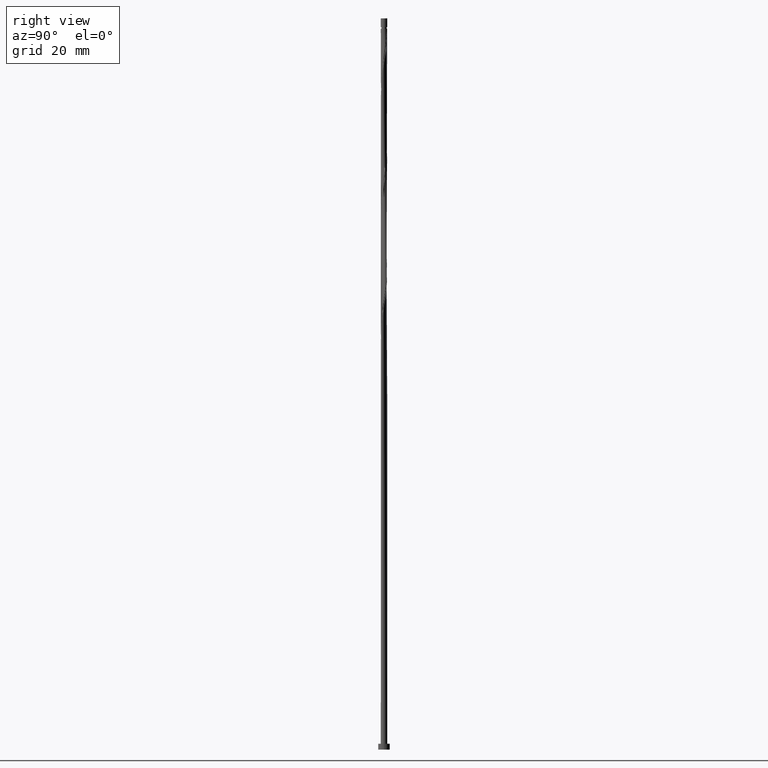
[diagram: clean part render]
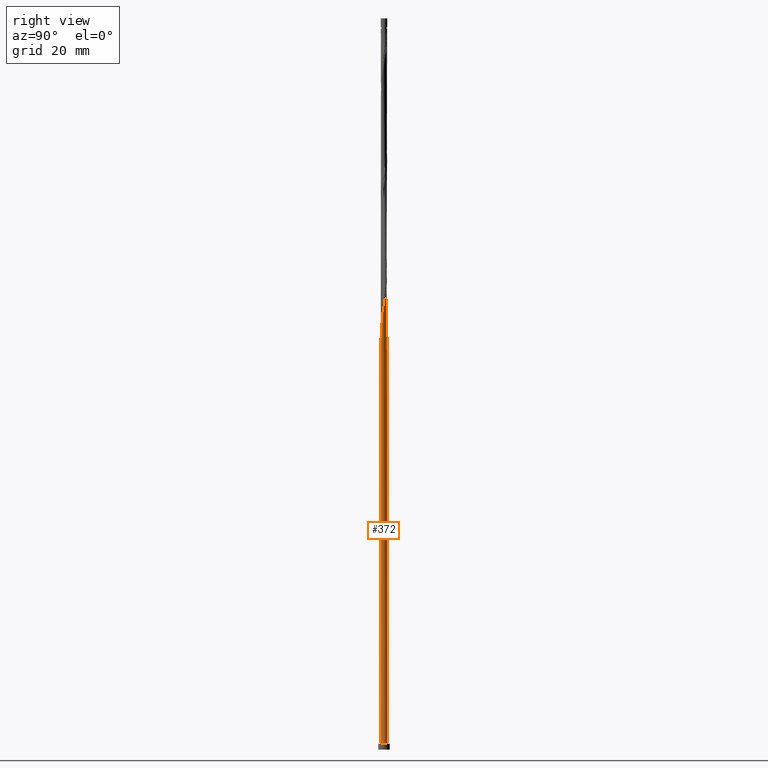
[diagram: same view with one face highlighted and labeled with its STEP entity id]
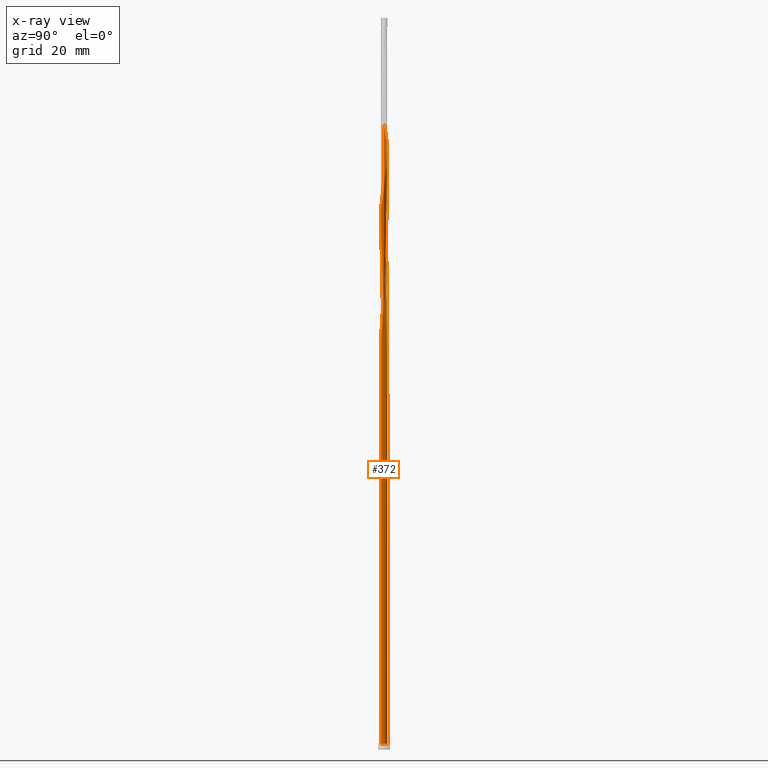
[diagram: x-ray of the same camera — body ghosted, the highlighted face saturated]
A machine part, right view. The second image highlights one B-rep face of the part: STEP entity #372.
The next image is the same camera in x-ray: the body ghosted, the highlighted face saturated — about 0% of this face is hidden behind the body in this view.
In plain terms, the highlighted cylindrical surface (bore or boss wall) has radius 1.1 mm, axis along (-0, -0, -1).
Its self-contained STEP definition (entity closure, byte-faithful):
#14 = CARTESIAN_POINT ( 'NONE',  ( -1.085917561661207564, 0.2205049656298698479, 131.9247440924688135 ) ) ;
#20 = ORIENTED_EDGE ( 'NONE', *, *, #575, .T. ) ;
#24 = VERTEX_POINT ( 'NONE', #306 ) ;
#35 = CARTESIAN_POINT ( 'NONE',  ( -1.096525312441912536, 0.08736268753976401957, 132.7260261437508859 ) ) ;
#56 = CARTESIAN_POINT ( 'NONE',  ( 1.085917561661207342, 0.2205049656298695704, 152.7580774258021563 ) ) ;
#64 = CARTESIAN_POINT ( 'NONE',  ( 0.04544580579190091868, 1.099060816668453677, 161.5721799899047539 ) ) ;
#65 = EDGE_CURVE ( 'NONE', #1525, #24, #1457, .T. ) ;
#71 = CARTESIAN_POINT ( 'NONE',  ( -1.011524410454707423, 0.4322249033249475070, 169.5850005027252223 ) ) ;
#75 = EDGE_LOOP ( 'NONE', ( #822, #698, #441, #195, #1601, #1332, #1346, #20, #578 ) ) ;
#79 = CARTESIAN_POINT ( 'NONE',  ( 1.085569539318544718, -0.1775915969400758132, 150.3542312719560812 ) ) ;
#80 = AXIS2_PLACEMENT_3D ( 'NONE', #376, #1046, #1710 ) ;
#86 = DIRECTION ( 'NONE',  ( -0.000000000000000000, -0.000000000000000000, -1.000000000000000000 ) ) ;
#88 = CARTESIAN_POINT ( 'NONE',  ( -0.5509992915702822680, -0.9520503036547229847, 137.5337184514431783 ) ) ;
#96 = CARTESIAN_POINT ( 'NONE',  ( 0.4353994555731702243, 1.018953730391247703, 200.8350005027252507 ) ) ;
#103 = CARTESIAN_POINT ( 'NONE',  ( -0.4705187664120752400, 0.9942897417021170359, 206.4439748616996440 ) ) ;
#113 = CARTESIAN_POINT ( 'NONE',  ( 1.096525312441912536, 0.08736268753976325629, 193.6234620411867979 ) ) ;
#118 = CARTESIAN_POINT ( 'NONE',  ( -0.9590428054949425851, 0.5550462033200861400, 210.4503851181099208 ) ) ;
#123 = CARTESIAN_POINT ( 'NONE',  ( -1.001592478565782374, 0.4739745747106117735, 130.3221799899047539 ) ) ;
#127 = CARTESIAN_POINT ( 'NONE',  ( -1.100000000000001865, 0.08938208239074957318, 130.0571214792286412 ) ) ;
#147 = CARTESIAN_POINT ( 'NONE',  ( -0.7628288044120180578, 0.7925226906274263072, 127.9183338360585793 ) ) ;
#158 = CARTESIAN_POINT ( 'NONE',  ( -0.8590584812566420814, -0.6998985043366532377, 135.1298722975971032 ) ) ;
#195 = ORIENTED_EDGE ( 'NONE', *, *, #1086, .T. ) ;
#203 = CARTESIAN_POINT ( 'NONE',  ( -0.5509992915702822680, -0.9520503036547229847, 179.2003851181098923 ) ) ;
#206 = DIRECTION ( 'NONE',  ( -0.000000000000000000, -0.000000000000000000, -1.000000000000000000 ) ) ;
#212 = CARTESIAN_POINT ( 'NONE',  ( 0.3071477027034161811, 1.056248213595657237, 159.9696158873406659 ) ) ;
#220 = CARTESIAN_POINT ( 'NONE',  ( 0.8786931595968742181, -0.6617388694021730799, 147.1491030668278484 ) ) ;
#228 = CARTESIAN_POINT ( 'NONE',  ( 0.6947954562229506914, -0.8527949777126653252, 187.2132056309303607 ) ) ;
#236 = CARTESIAN_POINT ( 'NONE',  ( -1.043755020113495080, -0.3472397701702404360, 174.3926928104175431 ) ) ;
#259 = CARTESIAN_POINT ( 'NONE',  ( 1.064006015414472373, -0.3094036033298096511, 191.2196158873406091 ) ) ;
#267 = CARTESIAN_POINT ( 'NONE',  ( -0.6947954562229506914, 0.8527949777126653252, 124.7132056309304033 ) ) ;
#278 = CARTESIAN_POINT ( 'NONE',  ( 1.001592478565782596, 0.4739745747106113849, 196.0273081950330152 ) ) ;
#294 = CARTESIAN_POINT ( 'NONE',  ( -0.9303254799112121720, -0.5869365395236321170, 134.3285902463150023 ) ) ;
#306 = CARTESIAN_POINT ( 'NONE',  ( 0.2188972361634583808, 1.078000000000001624, 121.5080774258021563 ) ) ;
#316 = CARTESIAN_POINT ( 'NONE',  ( -1.100000000000001865, 1.424553145295472458E-15, 130.5968222165769816 ) ) ;
#326 = CARTESIAN_POINT ( 'NONE',  ( -0.6665991275673944783, -0.8851468769181991547, 178.3991030668278484 ) ) ;
#329 = FACE_OUTER_BOUND ( 'NONE', #75, .T. ) ;
#334 = CARTESIAN_POINT ( 'NONE',  ( -0.7628288044120182798, -0.7925226906274261962, 177.5978210155458328 ) ) ;
#343 = CARTESIAN_POINT ( 'NONE',  ( -1.064006015414472595, 0.3094036033298089294, 170.3862825540073231 ) ) ;
#352 = CARTESIAN_POINT ( 'NONE',  ( -0.5912473987470955317, 0.9371584199410716298, 165.5785902463150308 ) ) ;
#359 = CARTESIAN_POINT ( 'NONE',  ( -0.9590428054949425851, 0.5550462033200861400, 168.7837184514432352 ) ) ;
#366 = CARTESIAN_POINT ( 'NONE',  ( -1.064006015414472595, 0.3094036033298089294, 128.7196158873406375 ) ) ;
#372 = ADVANCED_FACE ( 'NONE', ( #329 ), #863, .T. ) ;
#376 = CARTESIAN_POINT ( 'NONE',  ( 0.000000000000000000, 0.000000000000000000, 2.000000000000000000 ) ) ;
#383 = CARTESIAN_POINT ( 'NONE',  ( -0.6947954562229506914, 0.8527949777126653252, 208.0465389642637319 ) ) ;
#392 = CARTESIAN_POINT ( 'NONE',  ( -0.8786931595968742181, 0.6617388694021728579, 126.3157697334944771 ) ) ;
#413 = DIRECTION ( 'NONE',  ( 0.000000000000000000, 1.000000000000000000, -3.784851220313033316E-14 ) ) ;
#417 = CARTESIAN_POINT ( 'NONE',  ( -1.085917561661207342, -0.2205049656298697092, 131.9247440924688419 ) ) ;
#421 = VERTEX_POINT ( 'NONE', #1668 ) ;
#423 = CARTESIAN_POINT ( 'NONE',  ( -0.3071477027034154594, 1.056248213595657903, 124.7132056309303749 ) ) ;
#426 = CARTESIAN_POINT ( 'NONE',  ( 0.000000000000000000, 0.000000000000000000, 2.000000000000000000 ) ) ;
#429 = VERTEX_POINT ( 'NONE', #727 ) ;
#441 = ORIENTED_EDGE ( 'NONE', *, *, #1395, .T. ) ;
#453 = CARTESIAN_POINT ( 'NONE',  ( -0.3071477027034157370, -1.056248213595657459, 139.1362825540072947 ) ) ;
#461 = CARTESIAN_POINT ( 'NONE',  ( -0.04544580579190031500, -1.099060816668453677, 140.7388466565714111 ) ) ;
#470 = CARTESIAN_POINT ( 'NONE',  ( 1.096525312441912536, 0.08736268753976325629, 151.9567953745201407 ) ) ;
#481 = CARTESIAN_POINT ( 'NONE',  ( 0.4705187664120750179, -0.9942897417021172579, 185.6106415283663011 ) ) ;
#486 = EDGE_CURVE ( 'NONE', #421, #1525, #540, .T. ) ;
#488 = CARTESIAN_POINT ( 'NONE',  ( 0.7628288044120183908, 0.7925226906274260852, 156.7644876822124616 ) ) ;
#495 = CARTESIAN_POINT ( 'NONE',  ( -0.5912473987470955317, 0.9371584199410716298, 207.2452569129816879 ) ) ;
#502 = CARTESIAN_POINT ( 'NONE',  ( 0.3071477027034161811, 1.056248213595657237, 201.6362825540073231 ) ) ;
#509 = CARTESIAN_POINT ( 'NONE',  ( 1.085917561661207342, 0.2205049656298695704, 194.4247440924688135 ) ) ;
#516 = CARTESIAN_POINT ( 'NONE',  ( -0.5912473987470955317, 0.9371584199410716298, 123.9119235796483167 ) ) ;
#526 = CARTESIAN_POINT ( 'NONE',  ( 0.8590584812566425255, 0.6998985043366526826, 197.6298722975971032 ) ) ;
#528 = VERTEX_POINT ( 'NONE', #1354 ) ;
#540 = LINE ( 'NONE', #551, #1692 ) ;
#542 = CARTESIAN_POINT ( 'NONE',  ( -0.5509992915702819349, 0.9520503036547237619, 126.3157697334944771 ) ) ;
#551 = CARTESIAN_POINT ( 'NONE',  ( -1.100000000000000089, 0.000000000000000000, 250.0000000000000000 ) ) ;
#553 = CARTESIAN_POINT ( 'NONE',  ( -1.100000000000001865, 0.04375044337044819293, 132.9884950527277567 ) ) ;
#564 = CARTESIAN_POINT ( 'NONE',  ( -0.8590584812566418593, 0.6998985043366532377, 128.7196158873406659 ) ) ;
#575 = EDGE_CURVE ( 'NONE', #429, #24, #636, .T. ) ;
#578 = ORIENTED_EDGE ( 'NONE', *, *, #65, .F. ) ;
#591 = CARTESIAN_POINT ( 'NONE',  ( 0.5509992915702824900, 0.9520503036547229847, 158.3670517847765211 ) ) ;
#599 = CARTESIAN_POINT ( 'NONE',  ( -1.107133063222617286, 0.04577959055034207941, 171.9888466565714111 ) ) ;
#603 = CARTESIAN_POINT ( 'NONE',  ( -1.100000000000002087, -1.200214067296184068E-15, 133.2526659683607306 ) ) ;
#606 = CARTESIAN_POINT ( 'NONE',  ( -1.085569539318544718, 0.1775915969400757022, 171.1875646052893387 ) ) ;
#608 = VERTEX_POINT ( 'NONE', #1615 ) ;
#617 = CARTESIAN_POINT ( 'NONE',  ( 0.9590428054949423631, -0.5550462033200865841, 147.9503851181098639 ) ) ;
#623 = CARTESIAN_POINT ( 'NONE',  ( 0.7983435136988061842, -0.7684315354842599088, 146.3478210155457475 ) ) ;
#630 = CARTESIAN_POINT ( 'NONE',  ( 1.085569539318544718, -0.1775915969400758132, 192.0208979386226815 ) ) ;
#636 = CIRCLE ( 'NONE', #797, 1.100000000000000089 ) ;
#639 = CARTESIAN_POINT ( 'NONE',  ( -1.100000000000002531, 0.08938208239074595107, 213.3904548125620124 ) ) ;
#646 = CARTESIAN_POINT ( 'NONE',  ( -1.085569539318544718, 0.1775915969400757022, 212.8542312719560528 ) ) ;
#657 = CARTESIAN_POINT ( 'NONE',  ( -0.04544580579189993336, 1.099060816668453899, 123.1106415283662727 ) ) ;
#662 = CARTESIAN_POINT ( 'NONE',  ( 0.8786931595968742181, -0.6617388694021730799, 188.8157697334945055 ) ) ;
#696 =( BOUNDED_CURVE ( )  B_SPLINE_CURVE ( 2, ( #1164, #903, #1557, #516, #267, #1581, #392, #788, #772, #366, #1310, #127, #897 ),
 .UNSPECIFIED., .F., .T. ) 
 B_SPLINE_CURVE_WITH_KNOTS ( ( 3, 2, 2, 2, 2, 2, 3 ),
 ( 0.000000000000000000, 0.009615384615384581224, 0.01923076923076927347, 0.02884615384615385469, 0.03846153846153843592, 0.04807692307692312816, 0.05452716259738328575 ),
 .UNSPECIFIED. ) 
 CURVE ( )  GEOMETRIC_REPRESENTATION_ITEM ( )  RATIONAL_B_SPLINE_CURVE ( ( 0.9090909090909822243, 0.9024626128164853212, 0.9090909090909822243, 0.9024626128164853212, 0.9090909090909822243, 0.9024626128164853212, 0.9090909090909822243, 0.9024626128164853212, 0.9090909090909822243, 0.9024626128164853212, 0.9090909090909822243, 0.9046444828383419789, 0.9061636035683369172 ) ) 
 REPRESENTATION_ITEM ( '' )  );
#698 = ORIENTED_EDGE ( 'NONE', *, *, #1031, .F. ) ;
#724 = CARTESIAN_POINT ( 'NONE',  ( -0.4353994555731702243, -1.018953730391247703, 180.0016671693919648 ) ) ;
#727 = CARTESIAN_POINT ( 'NONE',  ( -0.2188972361634577701, 1.078000000000001180, 121.5080774258021563 ) ) ;
#733 = CARTESIAN_POINT ( 'NONE',  ( -0.1788959498336612219, -1.093542696800067882, 181.6042312719560812 ) ) ;
#741 = CARTESIAN_POINT ( 'NONE',  ( 0.3497901340770548373, -1.051421063463162664, 143.1426928104175431 ) ) ;
#750 = CARTESIAN_POINT ( 'NONE',  ( 1.107133063222617286, -0.04577959055034197533, 151.1555133232380683 ) ) ;
#758 = CARTESIAN_POINT ( 'NONE',  ( 1.043755020113495080, 0.3472397701702399919, 153.5593594770842572 ) ) ;
#766 = CARTESIAN_POINT ( 'NONE',  ( 0.9303254799112121720, 0.5869365395236321170, 196.8285902463150308 ) ) ;
#772 = CARTESIAN_POINT ( 'NONE',  ( -1.011524410454707423, 0.4322249033249475070, 127.9183338360585793 ) ) ;
#779 = CARTESIAN_POINT ( 'NONE',  ( 0.7983435136988061842, -0.7684315354842599088, 188.0144876822124616 ) ) ;
#788 = CARTESIAN_POINT ( 'NONE',  ( -0.9590428054949425851, 0.5550462033200861400, 127.1170517847765637 ) ) ;
#793 = CARTESIAN_POINT ( 'NONE',  ( -0.9303254799112121720, 0.5869365395236327831, 129.5208979386226531 ) ) ;
#797 = AXIS2_PLACEMENT_3D ( 'NONE', #1174, #925, #413 ) ;
#809 = CARTESIAN_POINT ( 'NONE',  ( -1.100000000000001865, -0.04375044337044581289, 130.8609931322099271 ) ) ;
#815 = DIRECTION ( 'NONE',  ( -0.000000000000000000, -0.000000000000000000, -1.000000000000000000 ) ) ;
#818 = DIRECTION ( 'NONE',  ( 1.000000000000000000, 0.000000000000000000, 0.000000000000000000 ) ) ;
#822 = ORIENTED_EDGE ( 'NONE', *, *, #486, .F. ) ;
#833 = CIRCLE ( 'NONE', #80, 1.100000000000000089 ) ;
#839 = DIRECTION ( 'NONE',  ( 0.000000000000000000, 0.000000000000000000, 1.000000000000000000 ) ) ;
#858 = CARTESIAN_POINT ( 'NONE',  ( -0.1788959498336612219, -1.093542696800067882, 139.9375646052893671 ) ) ;
#863 = CYLINDRICAL_SURFACE ( 'NONE', #1077, 1.100000000000000089 ) ;
#869 = CARTESIAN_POINT ( 'NONE',  ( -0.6665991275673944783, -0.8851468769181991547, 136.7324364001611627 ) ) ;
#876 = CARTESIAN_POINT ( 'NONE',  ( -0.9303254799112121720, -0.5869365395236321170, 175.9952569129816879 ) ) ;
#878 = CARTESIAN_POINT ( 'NONE',  ( 0.000000000000000000, 0.000000000000000000, 250.0000000000000000 ) ) ;
#883 = CARTESIAN_POINT ( 'NONE',  ( -0.4705187664120752400, 0.9942897417021170359, 164.7773081950329868 ) ) ;
#890 = CARTESIAN_POINT ( 'NONE',  ( -0.4353994555731702243, -1.018953730391247703, 138.3350005027252223 ) ) ;
#897 = CARTESIAN_POINT ( 'NONE',  ( -1.100000000000001865, 1.424553145295472458E-15, 130.5968222165769816 ) ) ;
#903 = CARTESIAN_POINT ( 'NONE',  ( -0.3497901340770550593, 1.051421063463162664, 122.3093594770842429 ) ) ;
#921 = CARTESIAN_POINT ( 'NONE',  ( -0.7983435136988061842, 0.7684315354842594648, 208.8478210155457759 ) ) ;
#925 = DIRECTION ( 'NONE',  ( 0.000000000000000000, -3.154042683594199479E-14, -1.000000000000000000 ) ) ;
#944 = CARTESIAN_POINT ( 'NONE',  ( 0.2188972361634583808, 1.078000000000001624, 121.5080774258021705 ) ) ;
#947 = CARTESIAN_POINT ( 'NONE',  ( -1.043755020113495080, -0.3472397701702404360, 132.7260261437508859 ) ) ;
#956 = CARTESIAN_POINT ( 'NONE',  ( -0.7628288044120182798, -0.7925226906274261962, 135.9311543488790619 ) ) ;
#962 = EDGE_CURVE ( 'NONE', #528, #608, #1131, .T. ) ;
#972 =( BOUNDED_CURVE ( )  B_SPLINE_CURVE ( 2, ( #1619, #809, #1608, #417, #947, #1477, #294, #158, #956, #869, #88, #890, #453, #858, #461, #1386, #1542, #741, #1017, #1663, #1262, #623, #220, #617, #1681, #1654, #79, #750, #470, #56, #758, #1245, #1549, #1523, #488, #1111, #591, #992, #212, #1647, #64, #1271, #1252, #1144, #883, #352, #1003, #1410, #1121, #359, #71, #343, #606, #599, #1534, #1376, #236, #986, #876, #1514, #334, #326, #203, #724, #1138, #733, #1127, #1394, #1674, #1404, #481, #1011, #228, #779, #662, #1300, #1696, #259, #630, #1702, #113, #509, #1277, #278, #766, #526, #1029, #1181, #1150, #96, #502, #1426, #1687, #1283, #1563, #1293, #103, #495, #383, #921, #1023, #118, #1170, #1569, #646, #639, #1038 ),
 .UNSPECIFIED., .F., .T. ) 
 B_SPLINE_CURVE_WITH_KNOTS ( ( 3, 2, 2, 2, 2, 2, 2, 2, 2, 2, 2, 2, 2, 2, 2, 2, 2, 2, 2, 2, 2, 2, 2, 2, 2, 2, 2, 2, 2, 2, 2, 2, 2, 2, 2, 2, 2, 2, 2, 2, 2, 2, 2, 2, 2, 2, 2, 2, 2, 2, 2, 2, 2, 3 ),
 ( 0.05452716259738328575, 0.05769230769230770939, 0.06730769230769229061, 0.07692307692307687184, 0.08653846153846156408, 0.09615384615384614531, 0.1057692307692307265, 0.1153846153846154188, 0.1250000000000000000, 0.1346153846153845812, 0.1442307692307692735, 0.1538461538461538547, 0.1634615384615384359, 0.1730769230769231282, 0.1826923076923077094, 0.1923076923076922906, 0.2019230769230768718, 0.2115384615384615641, 0.2211538461538461453, 0.2307692307692307265, 0.2403846153846154188, 0.2500000000000000000, 0.2596153846153845812, 0.2692307692307692735, 0.2788461538461538547, 0.2884615384615384359, 0.2980769230769231282, 0.3076923076923077094, 0.3173076923076922906, 0.3269230769230768718, 0.3365384615384615641, 0.3461538461538461453, 0.3557692307692307265, 0.3653846153846154188, 0.3750000000000000000, 0.3846153846153845812, 0.3942307692307692735, 0.4038461538461538547, 0.4134615384615384359, 0.4230769230769231282, 0.4326923076923077094, 0.4423076923076922906, 0.4519230769230768718, 0.4615384615384615641, 0.4711538461538461453, 0.4807692307692307265, 0.4903846153846154188, 0.5000000000000000000, 0.5096153846153845812, 0.5192307692307691624, 0.5288461538461538547, 0.5384615384615384359, 0.5480769230769231282, 0.5545271625973835494 ),
 .UNSPECIFIED. ) 
 CURVE ( )  GEOMETRIC_REPRESENTATION_ITEM ( )  RATIONAL_B_SPLINE_CURVE ( ( 0.9061636035683369172, 0.9069090390691255665, 0.9090909090909822243, 0.9024626128164853212, 0.9090909090909822243, 0.9024626128164853212, 0.9090909090909822243, 0.9024626128164853212, 0.9090909090909822243, 0.9024626128164853212, 0.9090909090909822243, 0.9024626128164853212, 0.9090909090909822243, 0.9024626128164853212, 0.9090909090909822243, 0.9024626128164853212, 0.9090909090909822243, 0.9024626128164853212, 0.9090909090909822243, 0.9024626128164853212, 0.9090909090909822243, 0.9024626128164853212, 0.9090909090909822243, 0.9024626128164853212, 0.9090909090909822243, 0.9024626128164853212, 0.9090909090909822243, 0.9024626128164853212, 0.9090909090909822243, 0.9024626128164853212, 0.9090909090909822243, 0.9024626128164853212, 0.9090909090909822243, 0.9024626128164853212, 0.9090909090909822243, 0.9024626128164853212, 0.9090909090909822243, 0.9024626128164853212, 0.9090909090909822243, 0.9024626128164853212, 0.9090909090909822243, 0.9024626128164853212, 0.9090909090909822243, 0.9024626128164853212, 0.9090909090909822243, 0.9024626128164853212, 0.9090909090909822243, 0.9024626128164853212, 0.9090909090909822243, 0.9024626128164853212, 0.9090909090909822243, 0.9024626128164853212, 0.9090909090909822243, 0.9024626128164853212, 0.9090909090909822243, 0.9024626128164853212, 0.9090909090909822243, 0.9024626128164853212, 0.9090909090909822243, 0.9024626128164853212, 0.9090909090909822243, 0.9024626128164853212, 0.9090909090909822243, 0.9024626128164853212, 0.9090909090909822243, 0.9024626128164853212, 0.9090909090909822243, 0.9024626128164853212, 0.9090909090909822243, 0.9024626128164853212, 0.9090909090909822243, 0.9024626128164853212, 0.9090909090909822243, 0.9024626128164853212, 0.9090909090909822243, 0.9024626128164853212, 0.9090909090909822243, 0.9024626128164853212, 0.9090909090909822243, 0.9024626128164853212, 0.9090909090909822243, 0.9024626128164853212, 0.9090909090909822243, 0.9024626128164853212, 0.9090909090909822243, 0.9024626128164853212, 0.9090909090909822243, 0.9024626128164853212, 0.9090909090909822243, 0.9024626128164853212, 0.9090909090909822243, 0.9024626128164853212, 0.9090909090909822243, 0.9024626128164853212, 0.9090909090909822243, 0.9024626128164853212, 0.9090909090909822243, 0.9024626128164853212, 0.9090909090909822243, 0.9024626128164853212, 0.9090909090909822243, 0.9024626128164853212, 0.9090909090909822243, 0.9024626128164853212, 0.9090909090909822243, 0.9046444828383418679, 0.9061636035683369172 ) ) 
 REPRESENTATION_ITEM ( '' )  );
#986 = CARTESIAN_POINT ( 'NONE',  ( -1.001592478565782596, -0.4739745747106117180, 175.1939748616996155 ) ) ;
#992 = CARTESIAN_POINT ( 'NONE',  ( 0.4353994555731702243, 1.018953730391247703, 159.1683338360585935 ) ) ;
#1003 = CARTESIAN_POINT ( 'NONE',  ( -0.6947954562229506914, 0.8527949777126653252, 166.3798722975970463 ) ) ;
#1009 = CARTESIAN_POINT ( 'NONE',  ( -1.100000000000000089, 0.000000000000000000, 250.0000000000000000 ) ) ;
#1011 = CARTESIAN_POINT ( 'NONE',  ( 0.5912473987470950876, -0.9371584199410719629, 186.4119235796483451 ) ) ;
#1017 = CARTESIAN_POINT ( 'NONE',  ( 0.4705187664120750179, -0.9942897417021172579, 143.9439748616996155 ) ) ;
#1023 = CARTESIAN_POINT ( 'NONE',  ( -0.8786931595968742181, 0.6617388694021728579, 209.6491030668278199 ) ) ;
#1029 = CARTESIAN_POINT ( 'NONE',  ( 0.7628288044120183908, 0.7925226906274260852, 198.4311543488791187 ) ) ;
#1031 = EDGE_CURVE ( 'NONE', #1456, #421, #972, .T. ) ;
#1038 = CARTESIAN_POINT ( 'NONE',  ( -1.100000000000001865, -6.206714491313604290E-16, 213.9301555499103245 ) ) ;
#1046 = DIRECTION ( 'NONE',  ( 0.000000000000000000, 0.000000000000000000, 1.000000000000000000 ) ) ;
#1069 = CARTESIAN_POINT ( 'NONE',  ( -0.1788959498336608334, 1.093542696800067882, 123.9119235796483025 ) ) ;
#1077 = AXIS2_PLACEMENT_3D ( 'NONE', #878, #206, #1397 ) ;
#1086 = EDGE_CURVE ( 'NONE', #608, #528, #833, .T. ) ;
#1089 = CARTESIAN_POINT ( 'NONE',  ( -0.6665991275673939231, 0.8851468769181994878, 127.1170517847765353 ) ) ;
#1103 = VECTOR ( 'NONE', #86, 1000.000000000000000 ) ;
#1106 = EDGE_CURVE ( 'NONE', #429, #1456, #696, .T. ) ;
#1111 = CARTESIAN_POINT ( 'NONE',  ( 0.6665991275673949223, 0.8851468769181988216, 157.5657697334944771 ) ) ;
#1121 = CARTESIAN_POINT ( 'NONE',  ( -0.8786931595968742181, 0.6617388694021728579, 167.9824364001611627 ) ) ;
#1127 = CARTESIAN_POINT ( 'NONE',  ( -0.04544580579190031500, -1.099060816668453677, 182.4055133232380683 ) ) ;
#1131 = CIRCLE ( 'NONE', #1499, 1.100000000000000089 ) ;
#1138 = CARTESIAN_POINT ( 'NONE',  ( -0.3071477027034157370, -1.056248213595657459, 180.8029492206739803 ) ) ;
#1144 = CARTESIAN_POINT ( 'NONE',  ( -0.3497901340770550593, 1.051421063463162664, 163.9760261437509428 ) ) ;
#1150 = CARTESIAN_POINT ( 'NONE',  ( 0.5509992915702824900, 0.9520503036547229847, 200.0337184514432067 ) ) ;
#1164 = CARTESIAN_POINT ( 'NONE',  ( -0.2188972361634577979, 1.078000000000001180, 121.5080774258021563 ) ) ;
#1170 = CARTESIAN_POINT ( 'NONE',  ( -1.011524410454707423, 0.4322249033249475070, 211.2516671693919363 ) ) ;
#1174 = CARTESIAN_POINT ( 'NONE',  ( 0.000000000000000000, 0.000000000000000000, 121.5080774258021847 ) ) ;
#1181 = CARTESIAN_POINT ( 'NONE',  ( 0.6665991275673949223, 0.8851468769181988216, 199.2324364001611343 ) ) ;
#1245 = CARTESIAN_POINT ( 'NONE',  ( 1.001592478565782596, 0.4739745747106113849, 154.3606415283662727 ) ) ;
#1252 = CARTESIAN_POINT ( 'NONE',  ( -0.2188972361634577979, 1.078000000000001180, 163.1747440924688135 ) ) ;
#1262 = CARTESIAN_POINT ( 'NONE',  ( 0.6947954562229506914, -0.8527949777126653252, 145.5465389642637035 ) ) ;
#1271 = CARTESIAN_POINT ( 'NONE',  ( -0.08800433824986045317, 1.104578936536840361, 162.3734620411867695 ) ) ;
#1277 = CARTESIAN_POINT ( 'NONE',  ( 1.043755020113495080, 0.3472397701702399919, 195.2260261437509143 ) ) ;
#1283 = CARTESIAN_POINT ( 'NONE',  ( -0.08800433824986045317, 1.104578936536840361, 204.0401287078534267 ) ) ;
#1293 = CARTESIAN_POINT ( 'NONE',  ( -0.3497901340770550593, 1.051421063463162664, 205.6426928104176000 ) ) ;
#1300 = CARTESIAN_POINT ( 'NONE',  ( 0.9590428054949423631, -0.5550462033200865841, 189.6170517847765780 ) ) ;
#1306 = CARTESIAN_POINT ( 'NONE',  ( -1.043755020113495080, 0.3472397701702408246, 131.1234620411867979 ) ) ;
#1310 = CARTESIAN_POINT ( 'NONE',  ( -1.085569539318544718, 0.1775915969400757022, 129.5208979386227099 ) ) ;
#1315 = CARTESIAN_POINT ( 'NONE',  ( 0.08800433824986102216, 1.104578936536840139, 122.3093594770841861 ) ) ;
#1332 = ORIENTED_EDGE ( 'NONE', *, *, #1395, .F. ) ;
#1346 = ORIENTED_EDGE ( 'NONE', *, *, #1106, .F. ) ;
#1354 = CARTESIAN_POINT ( 'NONE',  ( 1.100000000000000089, 0.000000000000000000, 2.000000000000000000 ) ) ;
#1376 = CARTESIAN_POINT ( 'NONE',  ( -1.085917561661207342, -0.2205049656298697092, 173.5914107591355275 ) ) ;
#1386 = CARTESIAN_POINT ( 'NONE',  ( 0.08800433824986056419, -1.104578936536840361, 141.5401287078533699 ) ) ;
#1394 = CARTESIAN_POINT ( 'NONE',  ( 0.08800433824986056419, -1.104578936536840361, 183.2067953745201123 ) ) ;
#1395 = EDGE_CURVE ( 'NONE', #1456, #608, #1645, .T. ) ;
#1397 = DIRECTION ( 'NONE',  ( -1.000000000000000000, 0.000000000000000000, 0.000000000000000000 ) ) ;
#1404 = CARTESIAN_POINT ( 'NONE',  ( 0.3497901340770548373, -1.051421063463162664, 184.8093594770842287 ) ) ;
#1410 = CARTESIAN_POINT ( 'NONE',  ( -0.7983435136988061842, 0.7684315354842594648, 167.1811543488790619 ) ) ;
#1426 = CARTESIAN_POINT ( 'NONE',  ( 0.1788959498336613052, 1.093542696800067882, 202.4375646052893103 ) ) ;
#1456 = VERTEX_POINT ( 'NONE', #316 ) ;
#1457 =( BOUNDED_CURVE ( )  B_SPLINE_CURVE ( 2, ( #1460, #553, #35, #14, #1306, #123, #793, #564, #147, #1089, #542, #1493, #423, #1069, #657, #1315, #944 ),
 .UNSPECIFIED., .F., .T. ) 
 B_SPLINE_CURVE_WITH_KNOTS ( ( 3, 2, 2, 2, 2, 2, 2, 2, 3 ),
 ( 0.9295271625973834384, 0.9326923076923077094, 0.9423076923076922906, 0.9519230769230768718, 0.9615384615384615641, 0.9711538461538461453, 0.9807692307692307265, 0.9903846153846154188, 1.000000000000000000 ),
 .UNSPECIFIED. ) 
 CURVE ( )  GEOMETRIC_REPRESENTATION_ITEM ( )  RATIONAL_B_SPLINE_CURVE ( ( 0.9061636035683381385, 0.9069090390691267878, 0.9090909090909833346, 0.9024626128164864314, 0.9090909090909833346, 0.9024626128164864314, 0.9090909090909833346, 0.9024626128164864314, 0.9090909090909833346, 0.9024626128164864314, 0.9090909090909833346, 0.9024626128164864314, 0.9090909090909833346, 0.9024626128164864314, 0.9090909090909833346, 0.9024626128164864314, 0.9090909090909833346 ) ) 
 REPRESENTATION_ITEM ( '' )  );
#1460 = CARTESIAN_POINT ( 'NONE',  ( -1.100000000000002087, -1.200214067296184068E-15, 133.2526659683607306 ) ) ;
#1477 = CARTESIAN_POINT ( 'NONE',  ( -1.001592478565782596, -0.4739745747106117180, 133.5273081950329583 ) ) ;
#1493 = CARTESIAN_POINT ( 'NONE',  ( -0.4353994555731700578, 1.018953730391247703, 125.5144876822123763 ) ) ;
#1499 = AXIS2_PLACEMENT_3D ( 'NONE', #426, #839, #818 ) ;
#1514 = CARTESIAN_POINT ( 'NONE',  ( -0.8590584812566420814, -0.6998985043366532377, 176.7965389642637319 ) ) ;
#1523 = CARTESIAN_POINT ( 'NONE',  ( 0.8590584812566425255, 0.6998985043366526826, 155.9632056309303891 ) ) ;
#1525 = VERTEX_POINT ( 'NONE', #603 ) ;
#1534 = CARTESIAN_POINT ( 'NONE',  ( -1.096525312441912536, -0.08736268753976370038, 172.7901287078535120 ) ) ;
#1542 = CARTESIAN_POINT ( 'NONE',  ( 0.2188972361634579644, -1.078000000000001180, 142.3414107591354991 ) ) ;
#1549 = CARTESIAN_POINT ( 'NONE',  ( 0.9303254799112121720, 0.5869365395236321170, 155.1619235796483451 ) ) ;
#1557 = CARTESIAN_POINT ( 'NONE',  ( -0.4705187664120752400, 0.9942897417021170359, 123.1106415283662869 ) ) ;
#1563 = CARTESIAN_POINT ( 'NONE',  ( -0.2188972361634577979, 1.078000000000001180, 204.8414107591355560 ) ) ;
#1569 = CARTESIAN_POINT ( 'NONE',  ( -1.064006015414472595, 0.3094036033298089294, 212.0529492206740088 ) ) ;
#1581 = CARTESIAN_POINT ( 'NONE',  ( -0.7983435136988061842, 0.7684315354842594648, 125.5144876822124331 ) ) ;
#1601 = ORIENTED_EDGE ( 'NONE', *, *, #962, .T. ) ;
#1608 = CARTESIAN_POINT ( 'NONE',  ( -1.096525312441912536, -0.08736268753976370038, 131.1234620411867979 ) ) ;
#1615 = CARTESIAN_POINT ( 'NONE',  ( -1.100000000000000089, 0.000000000000000000, 2.000000000000000000 ) ) ;
#1619 = CARTESIAN_POINT ( 'NONE',  ( -1.100000000000001865, 1.424553145295472458E-15, 130.5968222165769816 ) ) ;
#1645 = LINE ( 'NONE', #1009, #1103 ) ;
#1647 = CARTESIAN_POINT ( 'NONE',  ( 0.1788959498336613052, 1.093542696800067882, 160.7708979386227384 ) ) ;
#1654 = CARTESIAN_POINT ( 'NONE',  ( 1.064006015414472373, -0.3094036033298096511, 149.5529492206740656 ) ) ;
#1663 = CARTESIAN_POINT ( 'NONE',  ( 0.5912473987470950876, -0.9371584199410719629, 144.7452569129817448 ) ) ;
#1668 = CARTESIAN_POINT ( 'NONE',  ( -1.100000000000001865, -6.206714491313605276E-16, 213.9301555499103245 ) ) ;
#1674 = CARTESIAN_POINT ( 'NONE',  ( 0.2188972361634579644, -1.078000000000001180, 184.0080774258021847 ) ) ;
#1681 = CARTESIAN_POINT ( 'NONE',  ( 1.011524410454707423, -0.4322249033249475070, 148.7516671693919363 ) ) ;
#1687 = CARTESIAN_POINT ( 'NONE',  ( 0.04544580579190091868, 1.099060816668453677, 203.2388466565714111 ) ) ;
#1692 = VECTOR ( 'NONE', #815, 1000.000000000000000 ) ;
#1696 = CARTESIAN_POINT ( 'NONE',  ( 1.011524410454707423, -0.4322249033249475070, 190.4183338360585935 ) ) ;
#1702 = CARTESIAN_POINT ( 'NONE',  ( 1.107133063222617286, -0.04577959055034197533, 192.8221799899047824 ) ) ;
#1710 = DIRECTION ( 'NONE',  ( 1.000000000000000000, 0.000000000000000000, 0.000000000000000000 ) ) ;